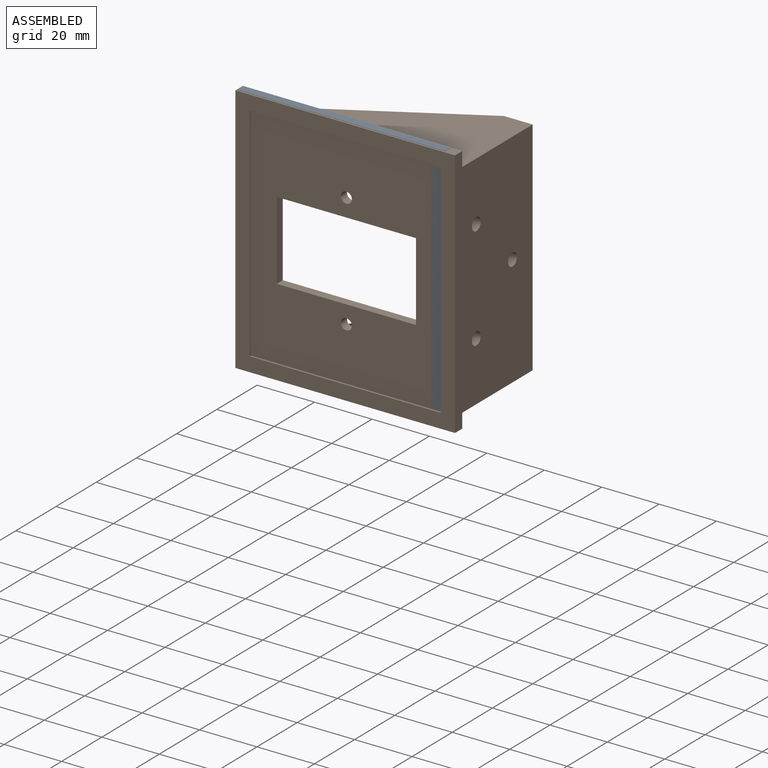
[diagram: assembled view]
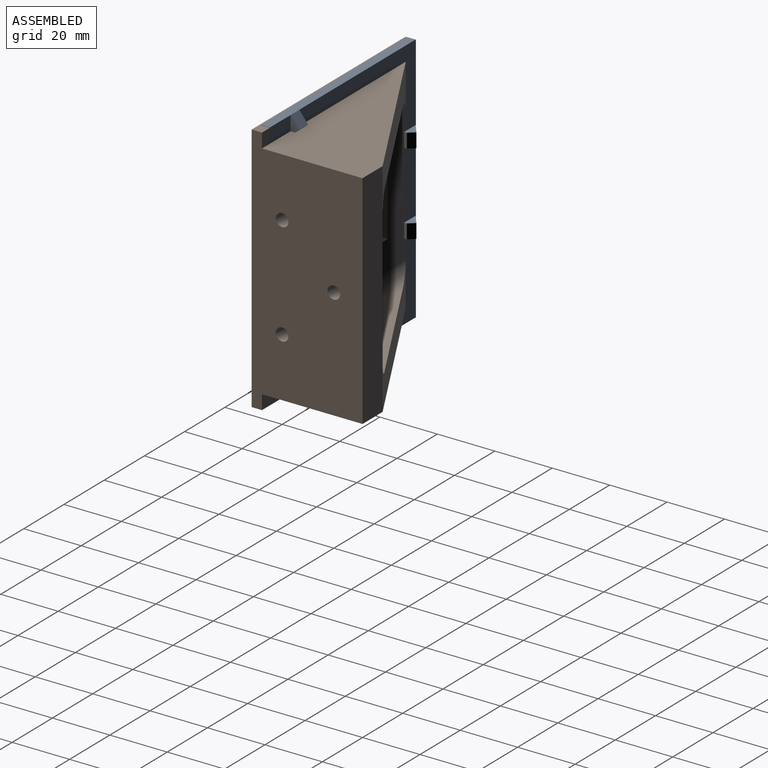
[diagram: assembled view, second angle]
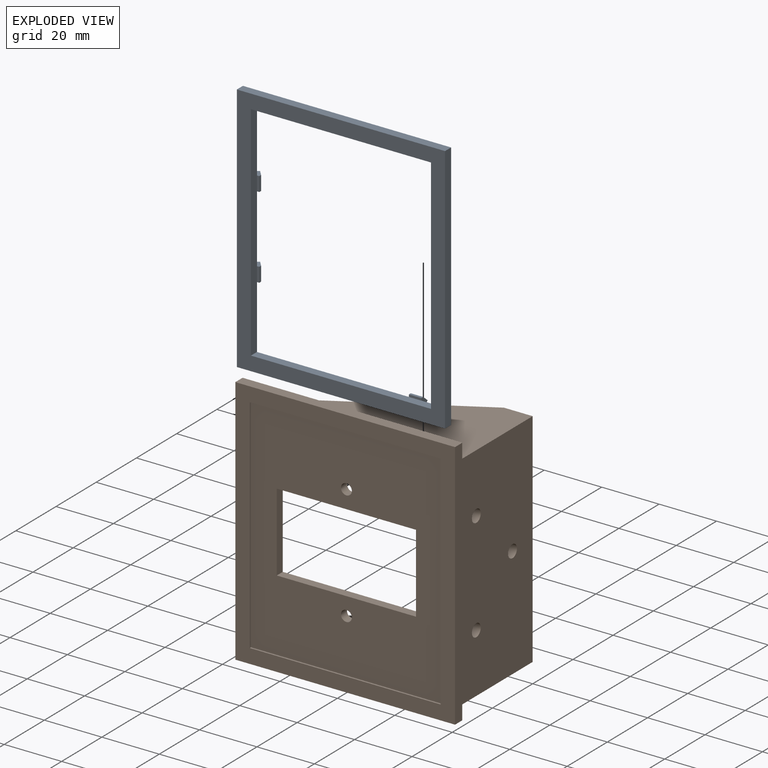
[diagram: exploded view]
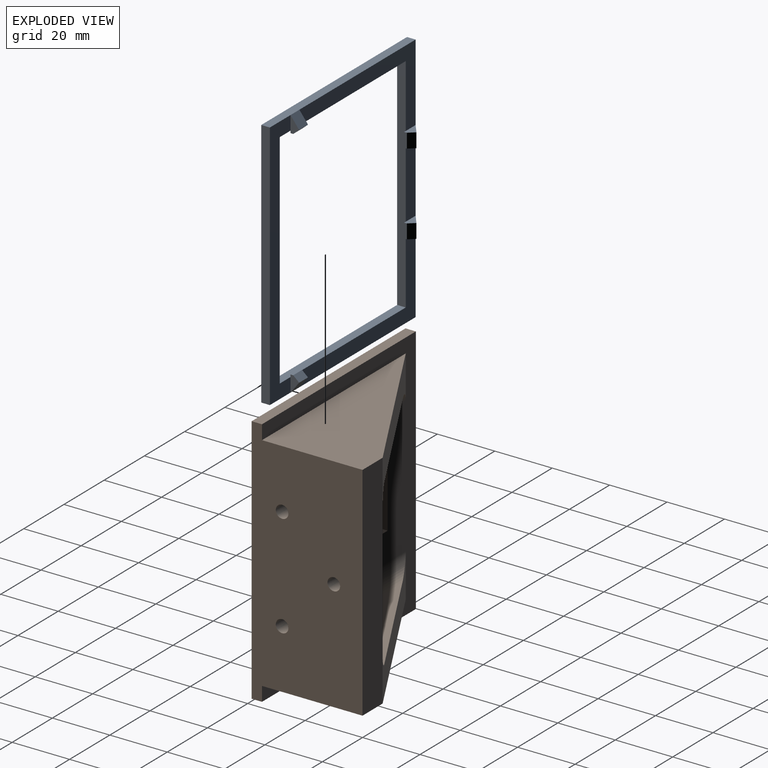
[diagram: exploded view, second angle]
ASSEMBLY  parts=2 mates=3
PART A: 37 faces, bbox 6x87.4x72.5 mm
  f0: plane 5.7x3mm, normal (0,0,-1), area 9.4mm2, adj f4,f23,f31,f34,f35
  f1: plane 4.4x0.8mm, normal (-1,0,0), area 3.5mm2, adj f7,f21,f22,f32
  f2: plane 5.7x3mm, normal (0,-1,0), area 9.4mm2, adj f3,f16,f27,f28,f30
  f3: plane 57.8x26.9mm, normal (1,0,0), area 391mm2, adj f2,f9,f10,f13,f14,f24
  f4: plane 87.35x10.3mm, normal (1,0,0), area 480.9mm2, adj f0,f7,f8,f9,f10,f11,f12,f21
  f5: plane 57.8x26.9mm, normal (1,0,0), area 391mm2, adj f7,f12,f13,f14,f19,f22
  f6: plane 23.55x4.9mm, normal (1,0,0), area 115.4mm2, adj f13,f14,f17,f20
  f7: plane 62.7x3mm, normal (0,-1,0), area 188.1mm2, adj f1,f4,f5,f8,f14,f15
  f8: plane 77.55x3mm, normal (0,0,1), area 232.7mm2, adj f4,f7,f9,f15
  f9: plane 62.7x3mm, normal (0,1,0), area 188.1mm2, adj f3,f4,f8,f14,f15,f23
  f10: plane 72.5x3mm, normal (0,-1,0), area 217.5mm2, adj f3,f4,f11,f13,f15,f31
  f11: plane 87.35x3mm, normal (0,0,-1), area 262mm2, adj f4,f10,f12,f15
  f12: plane 72.5x3mm, normal (0,1,0), area 217.5mm2, adj f4,f5,f11,f13,f15,f36
  f13: plane 87.35x3mm, normal (0,0,1), area 262mm2, adj f3,f5,f6,f10,f12,f15,f29,f30
  f14: plane 77.55x3mm, normal (0,0,-1), area 232.7mm2, adj f3,f5,f6,f7,f9,f15,f16,f18
  f15: plane 87.35x72.5mm, normal (-1,0,0), area 1470.5mm2, adj f7,f8,f9,f10,f11,f12,f13,f14
  f16: plane 5x0.8mm, normal (-1,0,0), area 4mm2, adj f2,f14,f17,f28
  f17: plane 5.7x3mm, normal (0,1,0), area 9.4mm2, adj f6,f16,f27,f28,f30
  f18: plane 5x0.8mm, normal (-1,0,0), area 4mm2, adj f14,f19,f20,f25
  f19: plane 5.7x3mm, normal (0,1,0), area 9.4mm2, adj f5,f18,f25,f26,f29
  f20: plane 5.7x3mm, normal (0,-1,0), area 9.4mm2, adj f6,f18,f25,f26,f29
  f21: plane 5.7x3mm, normal (0,0,-1), area 9.4mm2, adj f1,f4,f32,f33,f36
  f22: plane 5.7x3mm, normal (0,0,1), area 9.4mm2, adj f1,f5,f32,f33,f36
  f23: plane 4.4x0.8mm, normal (-1,0,0), area 3.5mm2, adj f0,f9,f24,f35
  f24: plane 5.7x3mm, normal (0,0,1), area 9.4mm2, adj f3,f23,f31,f34,f35
  f25: plane 5x0.92mm, normal (0,0,-1), area 4.6mm2, adj f18,f19,f20,f26
  f26: plane 5x2.08mm, normal (0.65,0,-0.76), area 13.7mm2, adj f19,f20,f25,f29
  f27: plane 5x2.08mm, normal (0.65,0,-0.76), area 13.7mm2, adj f2,f17,f28,f30
  f28: plane 5x0.92mm, normal (0,0,-1), area 4.6mm2, adj f2,f16,f17,f27
  f29: plane 5x3.9mm, normal (0.79,0,0.61), area 24.6mm2, adj f13,f19,f20,f26
  f30: plane 5x3.9mm, normal (0.79,0,0.61), area 24.6mm2, adj f2,f13,f17,f27
  f31: plane 4.4x3.9mm, normal (0.79,-0.61,0), area 21.6mm2, adj f0,f10,f24,f34
  f32: plane 4.4x0.92mm, normal (0,-1,0), area 4.1mm2, adj f1,f21,f22,f33
  f33: plane 4.4x2.08mm, normal (0.65,-0.76,0), area 12.1mm2, adj f21,f22,f32,f36
  f34: plane 4.4x2.08mm, normal (0.65,0.76,0), area 12.1mm2, adj f0,f24,f31,f35
  f35: plane 4.4x0.92mm, normal (0,1,0), area 4.1mm2, adj f0,f23,f24,f34
  f36: plane 4.4x3.9mm, normal (0.79,0.61,0), area 21.6mm2, adj f12,f21,f22,f33
PART B: 41 faces, bbox 87.4x76.5x38.6 mm
  f0: cylinder r=5mm len=23.25mm, axis (0,1,0), area 168.3mm2, adj f13,f21,f23,f34
  f1: cylinder r=5mm len=23.25mm, axis (0,-1,0), area 168.3mm2, adj f13,f19,f25,f32
  f2: plane 47.35x35mm, normal (0,1,0), area 1491mm2, adj f13,f15,f23,f25,f29,f30,f31
  f3: plane 87.35x3.6mm, normal (0,1,0), area 314.5mm2, adj f4,f12,f13,f40
  f4: plane 76.5x3.6mm, normal (-1,0,0), area 275.4mm2, adj f3,f5,f13,f40
  f5: plane 87.35x38.6mm, normal (0,-1,0), area 2976.1mm2, adj f4,f12,f13,f15,f16,f17,f26,f27
  f6: plane 48.5x3mm, normal (1,0,0), area 145.5mm2, adj f7,f11,f13,f14
  f7: plane 27.35x3mm, normal (0,-1,0), area 82mm2, adj f6,f8,f13,f14
  f8: plane 48.5x3mm, normal (-1,0,0), area 145.5mm2, adj f7,f11,f13,f14
  f9: cylinder r=1.9mm len=3.8mm, axis (0,0,-1), area 35.8mm2, adj f13,f14
  f10: cylinder r=1.9mm len=3.8mm, axis (0,0,-1), area 35.8mm2, adj f13,f14
  f11: plane 27.35x3mm, normal (0,1,0), area 82mm2, adj f6,f8,f13,f14
  f12: plane 76.5x3.6mm, normal (1,0,0), area 275.4mm2, adj f3,f5,f13,f40
  f13: plane 87.35x76.5mm, normal (0,0,1), area 2814.6mm2, adj f0,f1,f2,f3,f4,f5,f6,f7
  f14: plane 77.35x66.5mm, normal (0,0,-1), area 3794.6mm2, adj f6,f7,f8,f9,f10,f11,f36,f37
  f15: plane 77.35x10mm, normal (0,0,1), area 773.5mm2, adj f2,f5,f16,f17,f18,f20
  f16: plane 71.5x35mm, normal (1,0,0), area 1426.2mm2, adj f5,f13,f15,f20
  f17: plane 71.5x35mm, normal (-1,0,0), area 1426.2mm2, adj f5,f13,f15,f18
  f18: plane 61.5x35mm, normal (0,0.49,0.87), area 724.6mm2, adj f13,f15,f17,f19,f24,f25
  f19: plane 47.71x32.15mm, normal (1,0,0), area 697.8mm2, adj f1,f13,f18,f24,f25,f32,f33
  f20: plane 61.5x35mm, normal (0,0.49,0.87), area 724.6mm2, adj f13,f15,f16,f21,f22,f23
  f21: plane 47.71x32.15mm, normal (-1,0,0), area 697.8mm2, adj f0,f13,f20,f22,f23,f34,f35
  f22: cylinder r=5mm len=28.25mm, axis (0,1,0), area 196.8mm2, adj f13,f20,f21,f35
  f23: cylinder r=5mm len=35mm, axis (0,0,1), area 252.5mm2, adj f0,f2,f20,f21
  f24: cylinder r=5mm len=28.25mm, axis (0,-1,0), area 196.8mm2, adj f13,f18,f19,f33
  f25: cylinder r=5mm len=35mm, axis (0,0,-1), area 252.5mm2, adj f1,f2,f18,f19
  f26: cylinder r=2.2mm len=7mm, axis (0,1,0), area 96.8mm2, adj f5,f30
  f27: cylinder r=2.2mm len=7mm, axis (0,1,0), area 96.8mm2, adj f5,f29
  f28: cylinder r=2.2mm len=7mm, axis (0,1,0), area 96.8mm2, adj f5,f31
  f29: cone r=2.2mm half-angle=33.7deg, axis (0,1,0), area 72.5mm2, adj f2,f27
  f30: cone r=2.2mm half-angle=33.7deg, axis (0,1,0), area 72.5mm2, adj f2,f26
  f31: cone r=2.2mm half-angle=33.7deg, axis (0,1,0), area 72.5mm2, adj f2,f28
  f32: plane 5x5mm, normal (0,1,0), area 5.4mm2, adj f1,f13,f19
  f33: plane 5x5mm, normal (0,-1,0), area 5.4mm2, adj f13,f19,f24
  f34: plane 5x5mm, normal (0,1,0), area 5.4mm2, adj f0,f13,f21
  f35: plane 5x5mm, normal (0,-1,0), area 5.4mm2, adj f13,f21,f22
  f36: plane 66.5x0.6mm, normal (-1,0,0), area 39.9mm2, adj f14,f37,f39,f40
  f37: plane 77.35x0.6mm, normal (0,-1,0), area 46.4mm2, adj f14,f36,f38,f40
  f38: plane 66.5x0.6mm, normal (1,0,0), area 39.9mm2, adj f14,f37,f39,f40
  f39: plane 77.35x0.6mm, normal (0,1,0), area 46.4mm2, adj f14,f36,f38,f40
  f40: plane 87.35x76.5mm, normal (0,0,-1), area 1538.5mm2, adj f3,f4,f5,f12,f36,f37,f38,f39
PLACE A rot(axis=(-0.58,-0.58,0.58),120deg) t=(-3.9,-38,5.1)mm
PLACE B rot(axis=(-0.58,0.58,0.58),120deg) t=(-38.25,-38,-18.75)mm
MATE planar A.f7 <-> B.f16  axis (0,0,1) through (-40.15,-36.5,-77.35)mm
MATE planar A.f14 <-> B.f37  axis (1,0,0) through (-71.5,-36.5,-38.57)mm
MATE planar A.f15 <-> B.f14  axis (0,-1,0) through (-71.5,-38,-77.35)mm
